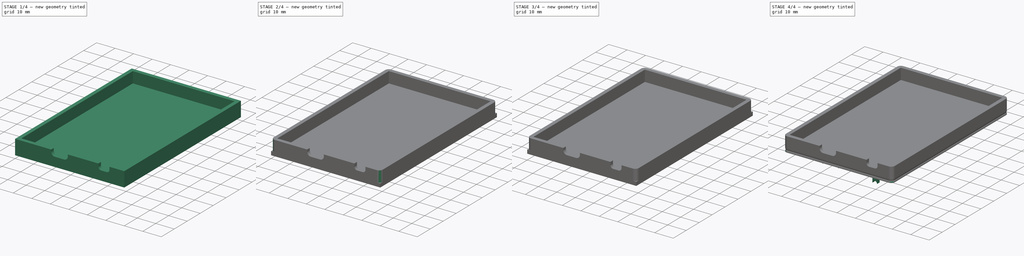
[diagram: build sequence overview — one tinted view per stage of 4, left to right]
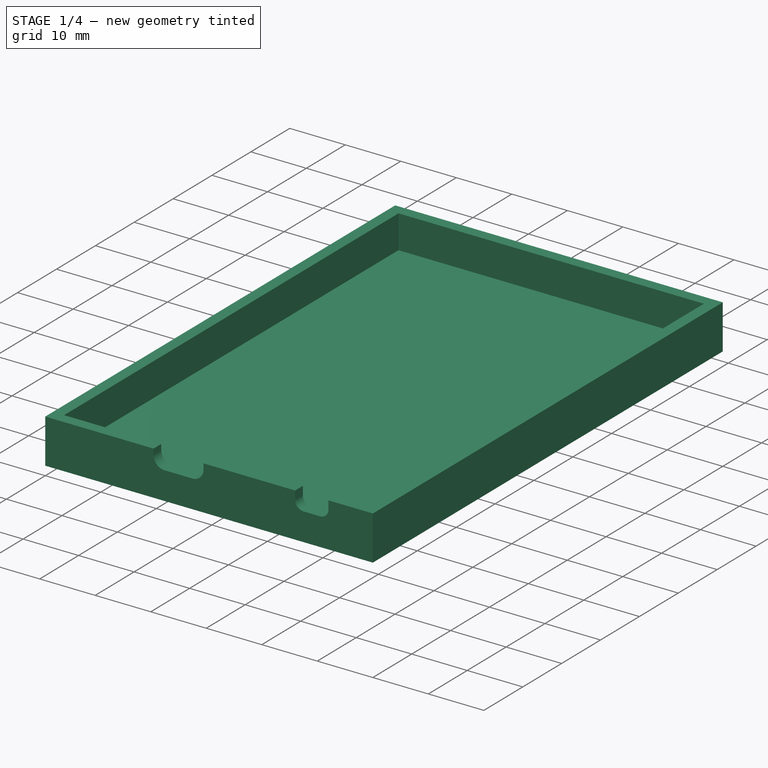
[diagram: stage 1 of 4 — iso view after this stage's code; geometry added in this stage tinted green]
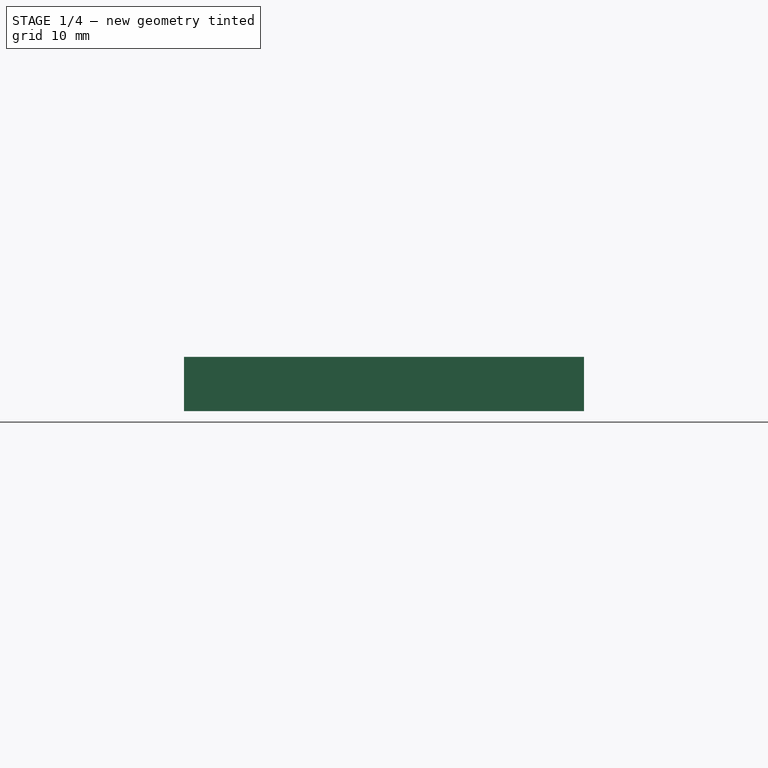
[diagram: stage 1 of 4 — front view after this stage's code; geometry added in this stage tinted green]
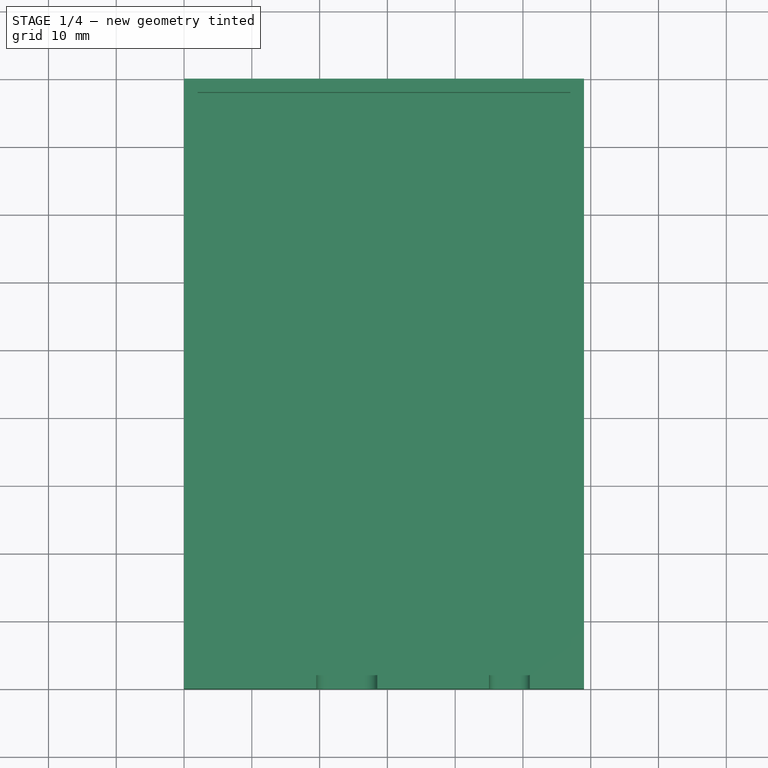
[diagram: stage 1 of 4 — top view after this stage's code; geometry added in this stage tinted green]
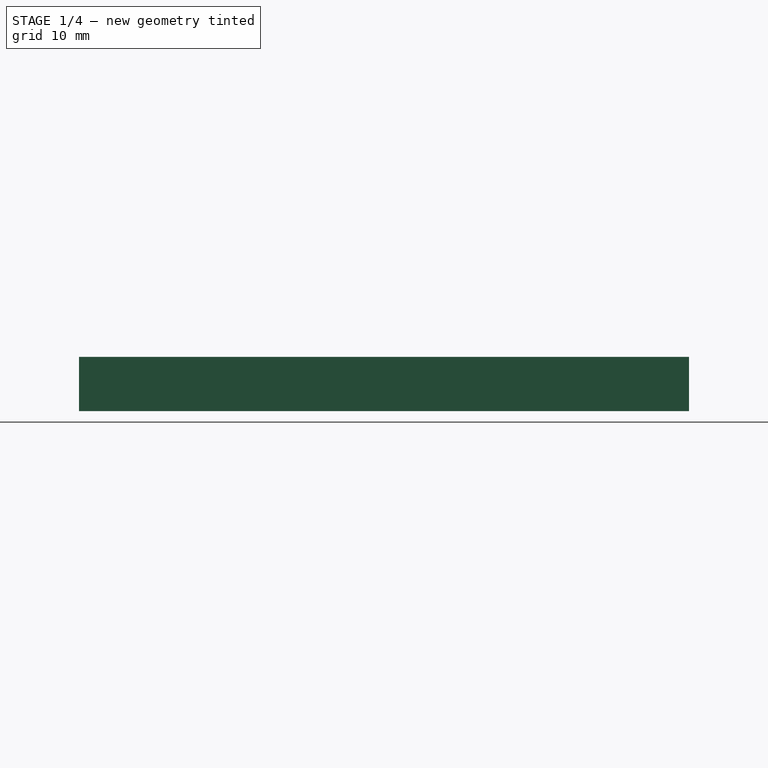
[diagram: stage 1 of 4 — right view after this stage's code; geometry added in this stage tinted green]
FCSTD DOCUMENT  (FreeCAD 0.21R33668 +26 (Git))
Label: ControllerEnclosure
License: All rights reserved
LicenseURL: http://en.wikipedia.org/wiki/All_rights_reserved
objects: Sketcher::SketchObject×6, PartDesign::Pocket×4, PartDesign::Fillet×3, PartDesign::AdditiveBox×2, PartDesign::Pad×2, PartDesign::Body×2, App::Part×2
note: 30 computed .brp shape members not serialized (recipe doc carries the construction recipe); baked Part::Feature solids carry a one-line shape summary decoded from their .brp

FEATURE [PartDesign::AdditiveBox] Box
  AttacherType = Attacher::AttachEngine3D
  Height = 8
  Length = 59
  Width = 90
FEATURE [Sketcher::SketchObject] Sketch
  FullyConstrained = true
  MapMode = 5
  Placement = pos=(0,0,8) rot=(0,0,1;0rad)
  Support = -> [Box]
  sketch-geometry (4):
    g0: LineSegment StartX=2 StartY=88 StartZ=0 EndX=57 EndY=88 EndZ=0
    g1: LineSegment StartX=57 StartY=88 StartZ=0 EndX=57 EndY=2 EndZ=0
    g2: LineSegment StartX=57 StartY=2 StartZ=0 EndX=2 EndY=2 EndZ=0
    g3: LineSegment StartX=2 StartY=2 StartZ=0 EndX=2 EndY=88 EndZ=0
  constraints (12):
    c: Coincident(g0,g1)
    c: Coincident(g1,g2)
    c: Coincident(g2,g3)
    c: Coincident(g3,g0)
    c: Horizontal(g0)
    c: Horizontal(g2)
    c: Vertical(g1)
    c: Vertical(g3)
    c: DistanceX(g0,g0) = 55
    c: DistanceY(g1,g1) = 86
    c: DistanceY(g-1,g2) = 2
    c: DistanceX(g-1,g2) = 2
FEATURE [PartDesign::Pocket] Pocket
  BaseFeature = -> Box
  Direction = (0,0,-1)
  Length = 6
  Length2 = 5
  Profile = -> Sketch
  ReferenceAxis = -> Sketch [N_Axis]
  Type = 0
FEATURE [Sketcher::SketchObject] Sketch001
  ExternalGeometry = -> [Pocket]
  FullyConstrained = true
  MapMode = 5
  Placement = pos=(0,0,0) rot=(1,0,0;1.5708rad)
  Support = -> [Pocket]
  sketch-geometry (14):
    g0: LineSegment StartX=28.5 StartY=8 StartZ=0 EndX=28.5 EndY=7 EndZ=0
    g1: ArcOfCircle CenterX=26.5 CenterY=7 CenterZ=0 NormalX=0 NormalY=0 NormalZ=1 AngleXU=0 Radius=2 StartAngle=4.71239 EndAngle=6.28319
    g2: LineSegment StartX=26.5 StartY=5 StartZ=0 EndX=21.5 EndY=5 EndZ=0
    g3: ArcOfCircle CenterX=21.5 CenterY=7 CenterZ=0 NormalX=0 NormalY=0 NormalZ=1 AngleXU=0 Radius=2 StartAngle=3.14159 EndAngle=4.71239
    g4: LineSegment StartX=19.5 StartY=7 StartZ=0 EndX=19.5 EndY=8 EndZ=0
    g5: GeomPoint X=28.5 Y=5 Z=0
    g6: ArcOfCircle CenterX=46.5 CenterY=6.5 CenterZ=0 NormalX=0 NormalY=0 NormalZ=1 AngleXU=0 Radius=1.5 StartAngle=3.14159 EndAngle=4.71239
    g7: LineSegment StartX=45 StartY=6.5 StartZ=0 EndX=45 EndY=8 EndZ=0
    g8: LineSegment StartX=51 StartY=6.5 StartZ=0 EndX=51 EndY=8 EndZ=0
    g9: LineSegment StartX=19.5 StartY=8 StartZ=0 EndX=28.5 EndY=8 EndZ=0
    g10: LineSegment StartX=45 StartY=8 StartZ=0 EndX=51 EndY=8 EndZ=0
    g11: GeomPoint X=48 Y=8 Z=0
    g12: ArcOfCircle CenterX=49.5 CenterY=6.5 CenterZ=0 NormalX=0 NormalY=0 NormalZ=1 AngleXU=0 Radius=1.5 StartAngle=4.71239 EndAngle=6.28319
    g13: LineSegment StartX=46.5 StartY=5 StartZ=0 EndX=49.5 EndY=5 EndZ=0
  constraints (39):
    c: Tangent(g0,g1) = 1.5708
    c: Tangent(g1,g2) = 1.5708
    c: Tangent(g2,g3) = 1.5708
    c: Tangent(g3,g4) = 1.5708
    c: Horizontal(g2)
    c: Vertical(g0)
    c: Vertical(g4)
    c: Equal(g1,g3)
    c: PointOnObject(g5,g0)
    c: PointOnObject(g5,g2)
    c: PointOnObject(g0,g-3)
    c: PointOnObject(g4,g-3)
    c: DistanceX(g4,g0) = 9
    c: Radius(g1) = 2
    c: DistanceY(g2,g4) = 3
    c: DistanceX(g-1,g4) = 19.5
    c: Radius(g6) = 1.5
    c: Horizontal(g6,g6)
    c: Coincident(g7,g6)
    c: PointOnObject(g7,g-3)
    c: Vertical(g7)
    c: PointOnObject(g8,g-3)
    c: Vertical(g8)
    c: Coincident(g9,g4)
    c: Coincident(g9,g0)
    c: Coincident(g10,g7)
    c: Coincident(g10,g8)
    c: Horizontal(g6,g8)
    c: DistanceX(g-1,g11) = 48
    c: Symmetric(g7,g8,g11)
    c: Vertical(g6,g6)
    c: Coincident(g12,g8)
    c: Horizontal(g8,g12)
    c: Vertical(g12,g12)
    c: Equal(g6,g12)
    c: Coincident(g13,g6)
    c: Coincident(g13,g12)
    c: DistanceX(g7,g8) = 6
    c: Horizontal(g1,g6)
FEATURE [PartDesign::Pocket] Pocket001
  BaseFeature = -> Pocket
  Direction = (0,1,-2e-16)
  Length = 2
  Length2 = 5
  Profile = -> Sketch001
  ReferenceAxis = -> Sketch001 [N_Axis]
  Type = 0
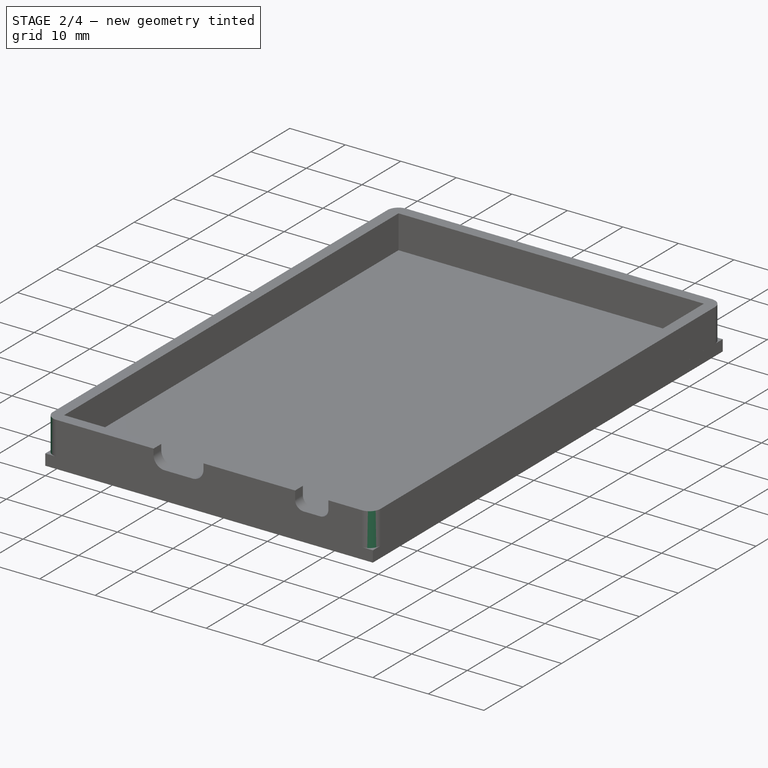
[diagram: stage 2 of 4 — iso view after this stage's code; geometry added in this stage tinted green]
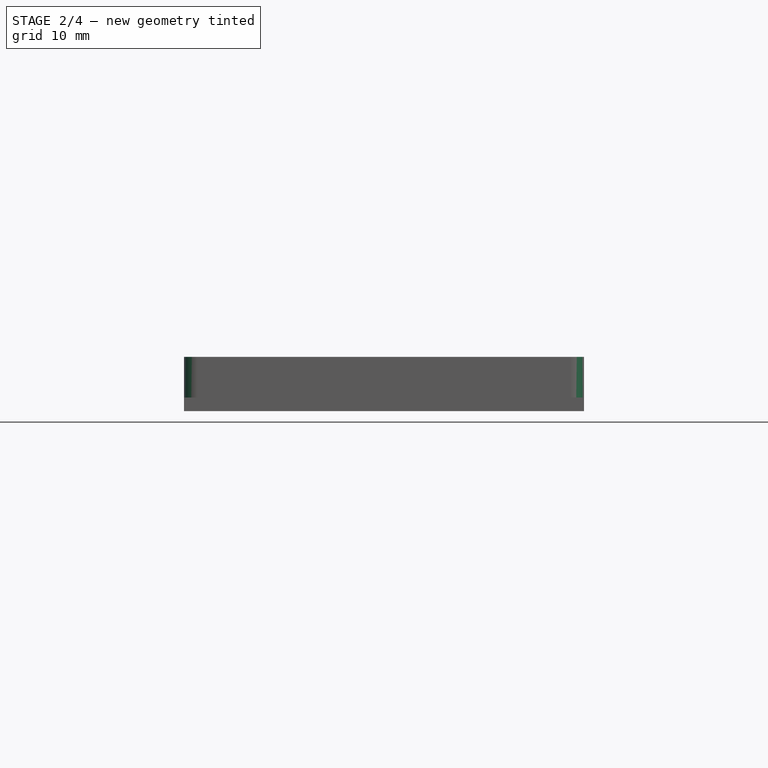
[diagram: stage 2 of 4 — front view after this stage's code; geometry added in this stage tinted green]
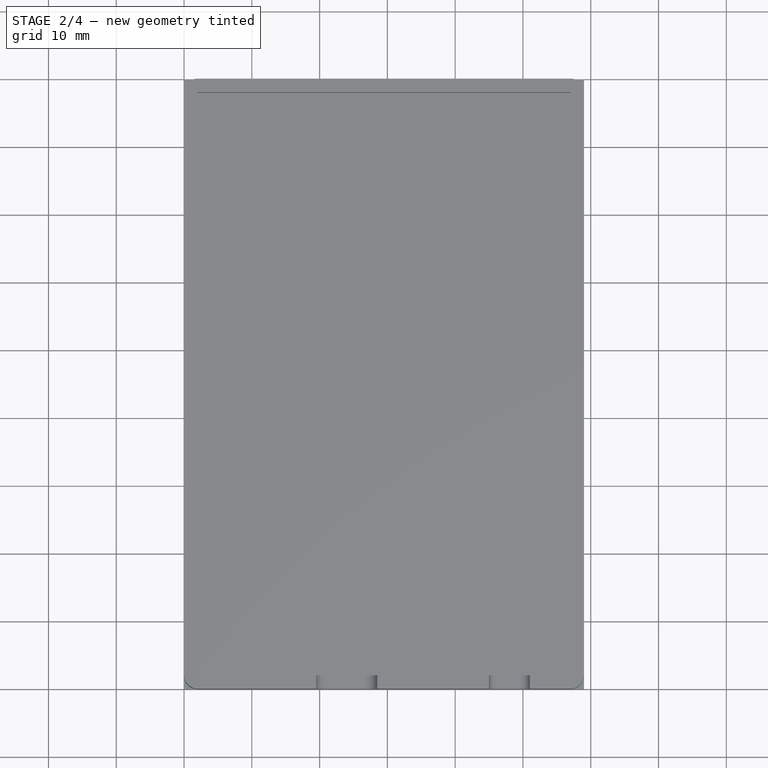
[diagram: stage 2 of 4 — top view after this stage's code; geometry added in this stage tinted green]
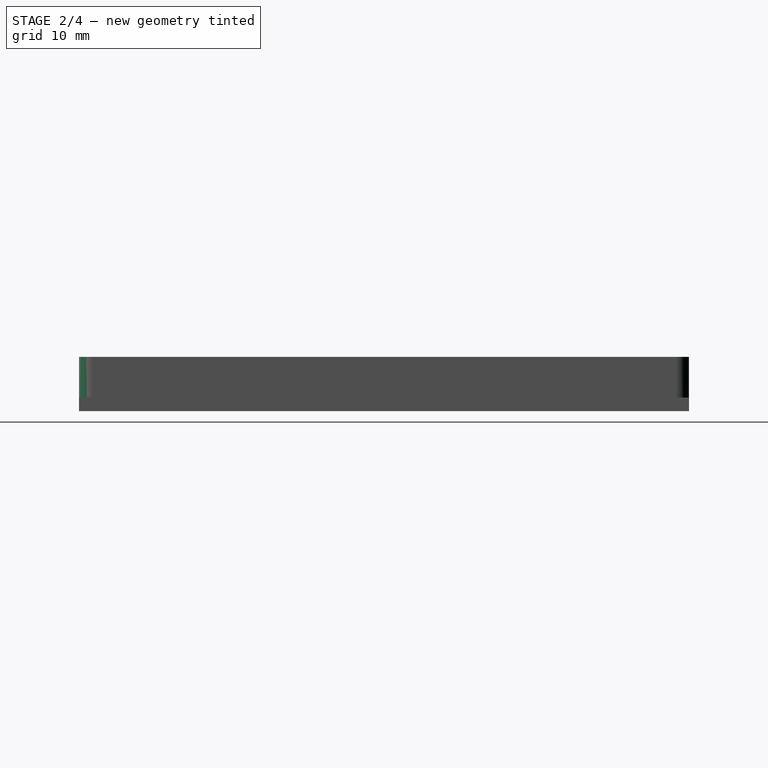
[diagram: stage 2 of 4 — right view after this stage's code; geometry added in this stage tinted green]
FEATURE [PartDesign::AdditiveBox] Box001
  AttacherType = Attacher::AttachEngine3D
  Height = 2
  Length = 59
  MapMode = 2
  Support = -> [Box]
  Width = 90
FEATURE [PartDesign::Body] Body001  label="Top"
  Group = -> [Box001,Sketch002,Sketch003,Pad,Sketch005,Pocket002,Fillet001,Sketch004,Pad001,Pocket003]
  Origin = -> Origin003
  Tip = -> Pocket003
FEATURE [App::Part] Part001  label="TopPart"
  Group = -> [Body001]
  Origin = -> Origin002
FEATURE [PartDesign::Fillet] Fillet
  Base = -> Pocket001 [Edge30,Edge3,Edge1,Edge5]
  BaseFeature = -> Pocket001
  Radius = 2
  SupportTransform = false
  UseAllEdges = false
FEATURE [PartDesign::Fillet] Fillet002
  Base = -> Fillet [Edge24]
  BaseFeature = -> Fillet
  Radius = 2
  SupportTransform = false
  UseAllEdges = false
FEATURE [PartDesign::Body] Body  label="Bottom"
  Group = -> [Box,Sketch,Pocket,Sketch001,Pocket001,Fillet,Fillet002]
  Origin = -> Origin
  Tip = -> Fillet002
FEATURE [App::Part] Part  label="BottomPart"
  Group = -> [Body]
  Origin = -> Origin001
  Placement = pos=(0,0,-8) rot=(0,0,1;0rad)
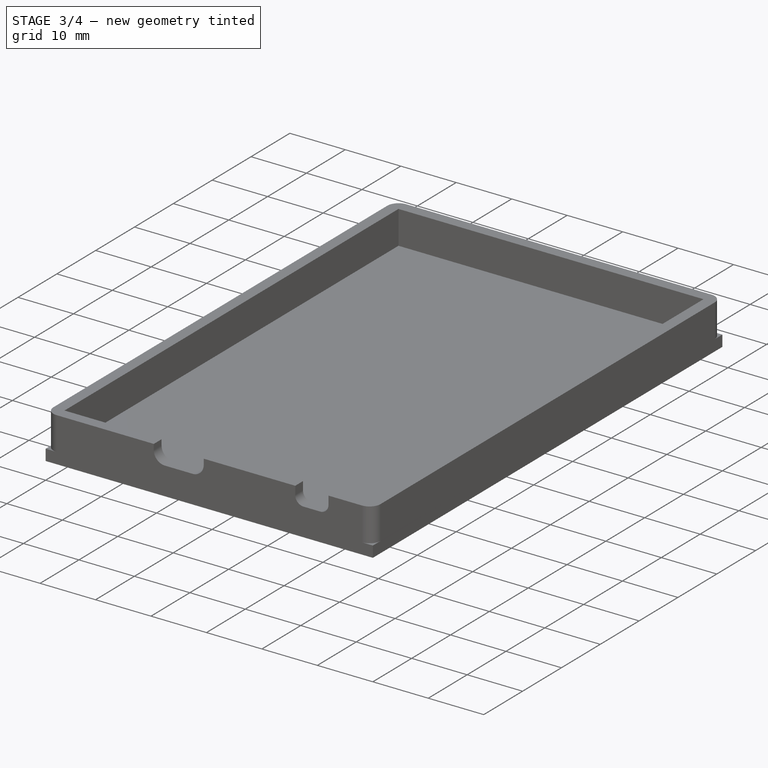
[diagram: stage 3 of 4 — iso view after this stage's code; geometry added in this stage tinted green]
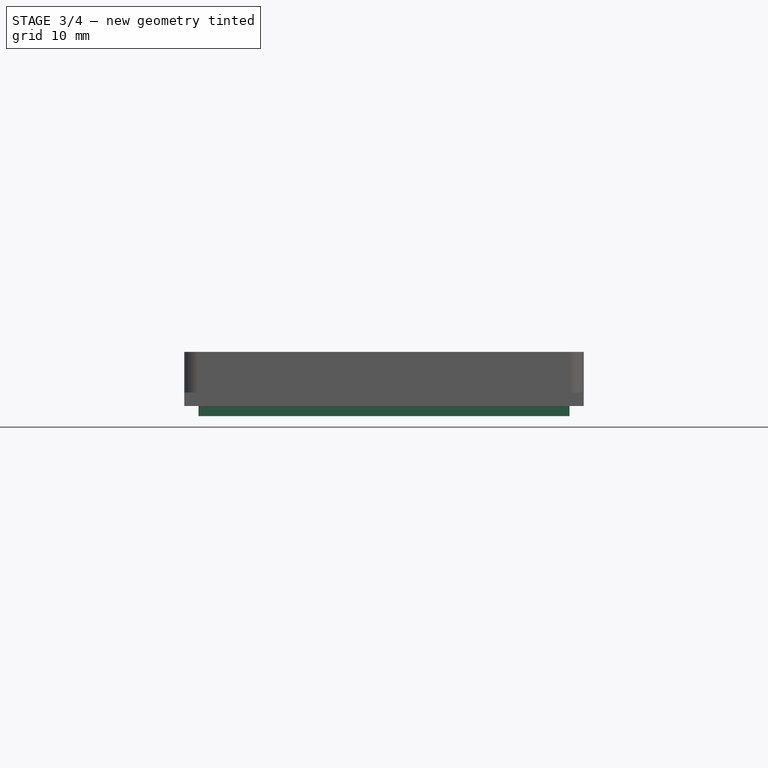
[diagram: stage 3 of 4 — front view after this stage's code; geometry added in this stage tinted green]
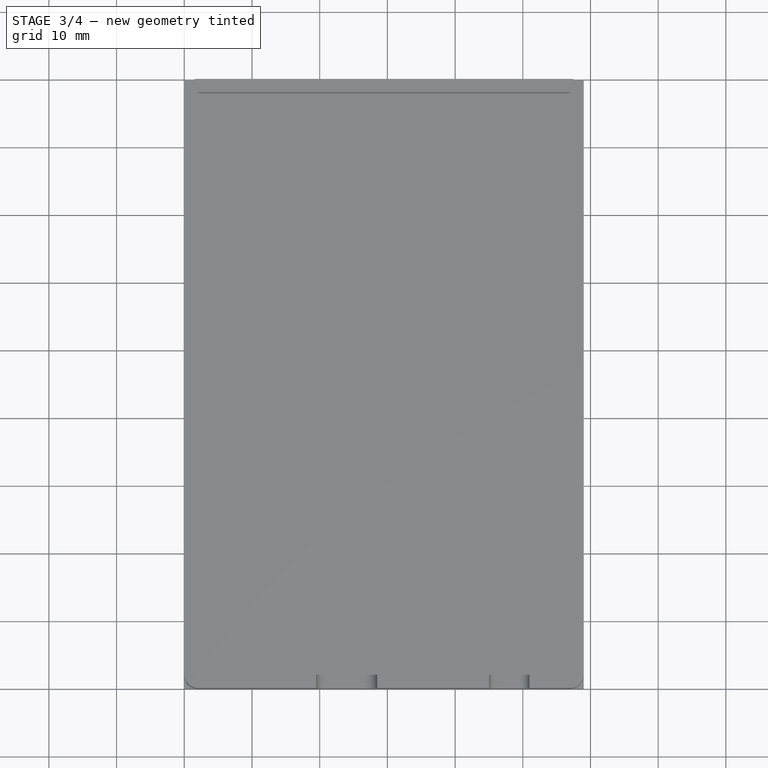
[diagram: stage 3 of 4 — top view after this stage's code; geometry added in this stage tinted green]
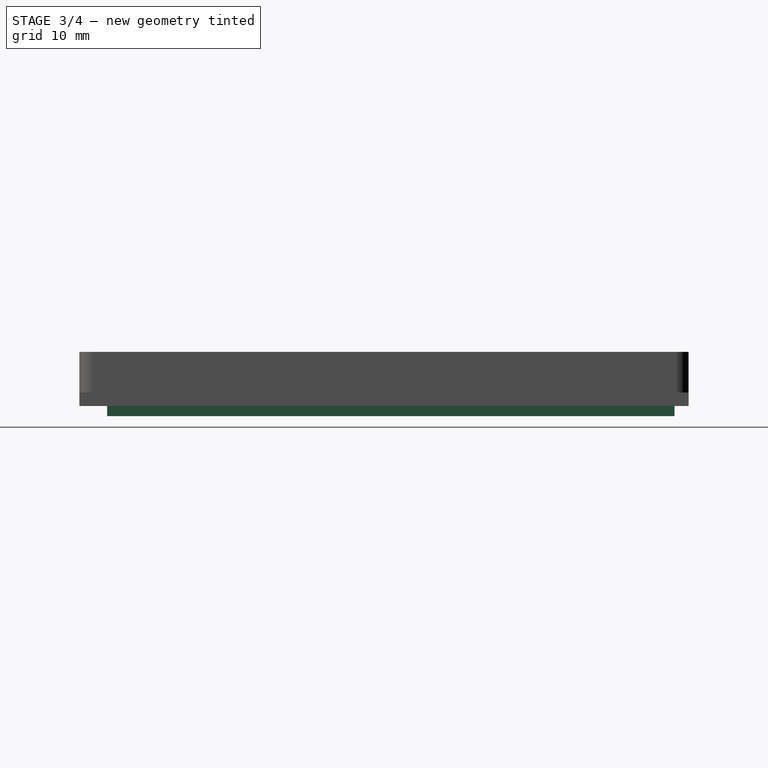
[diagram: stage 3 of 4 — right view after this stage's code; geometry added in this stage tinted green]
FEATURE [Sketcher::SketchObject] Sketch002
  ExternalGeometry = -> [Box001]
  FullyConstrained = true
  MapMode = 5
  Placement = pos=(0,0,0) rot=(1,0,0;3.14159rad)
  Support = -> [Box001]
  sketch-geometry (12):
    g0: LineSegment StartX=4 StartY=-4.5 StartZ=0 EndX=11.5 EndY=-4.5 EndZ=0
    g1: LineSegment StartX=11.5 StartY=-4.5 StartZ=0 EndX=11.5 EndY=-12.5 EndZ=0
    g2: LineSegment StartX=11.5 StartY=-12.5 StartZ=0 EndX=4 EndY=-12.5 EndZ=0
    g3: LineSegment StartX=4 StartY=-12.5 StartZ=0 EndX=4 EndY=-4.5 EndZ=0
    g4: LineSegment StartX=4 StartY=-67 StartZ=0 EndX=11.5 EndY=-67 EndZ=0
    g5: LineSegment StartX=11.5 StartY=-67 StartZ=0 EndX=11.5 EndY=-75 EndZ=0
    g6: LineSegment StartX=11.5 StartY=-75 StartZ=0 EndX=4 EndY=-75 EndZ=0
    g7: LineSegment StartX=4 StartY=-75 StartZ=0 EndX=4 EndY=-67 EndZ=0
    g8: LineSegment StartX=4 StartY=-79.5 StartZ=0 EndX=11.5 EndY=-79.5 EndZ=0
    g9: LineSegment StartX=11.5 StartY=-79.5 StartZ=0 EndX=11.5 EndY=-87.5 EndZ=0
    g10: LineSegment StartX=11.5 StartY=-87.5 StartZ=0 EndX=4 EndY=-87.5 EndZ=0
    g11: LineSegment StartX=4 StartY=-87.5 StartZ=0 EndX=4 EndY=-79.5 EndZ=0
  constraints (36):
    c: Coincident(g0,g1)
    c: Coincident(g1,g2)
    c: Coincident(g2,g3)
    c: Coincident(g3,g0)
    c: Horizontal(g0)
    c: Horizontal(g2)
    c: Vertical(g1)
    c: Vertical(g3)
    c: DistanceY(g1,g1) = 8
    c: DistanceX(g0,g0) = 7.5
    c: DistanceY(g0,g-1) = 4.5
    c: DistanceX(g-1,g0) = 4
    c: Coincident(g4,g5)
    c: Coincident(g5,g6)
    c: Coincident(g6,g7)
    c: Coincident(g7,g4)
    c: Horizontal(g4)
    c: Horizontal(g6)
    c: Vertical(g5)
    c: Vertical(g7)
    c: Coincident(g8,g9)
    c: Coincident(g9,g10)
    c: Coincident(g10,g11)
    c: Coincident(g11,g8)
    c: Horizontal(g8)
    c: Horizontal(g10)
    c: Vertical(g9)
    c: Vertical(g11)
    c: Vertical(g8,g6)
    c: Vertical(g5,g8)
    c: Vertical(g4,g1)
    c: Vertical(g2,g4)
    c: Equal(g7,g11)
    c: Equal(g7,g3)
    c: DistanceY(g-3,g6) = 15
    c: DistanceY(g-3,g10) = 2.5
FEATURE [Sketcher::SketchObject] Sketch003
  ExternalGeometry = -> [Box001,Sketch002]
  FullyConstrained = true
  MapMode = 5
  Placement = pos=(0,0,0) rot=(1,0,0;3.14159rad)
  Support = -> [Box001]
  sketch-geometry (13):
    g0: LineSegment StartX=56.9 StartY=-87.9 StartZ=0 EndX=2.1 EndY=-87.9 EndZ=0
    g1: LineSegment StartX=2.1 StartY=-87.9 StartZ=0 EndX=2.1 EndY=-4.1 EndZ=0
    g2: LineSegment StartX=2.1 StartY=-4.1 StartZ=0 EndX=56.9 EndY=-4.1 EndZ=0
    g3: LineSegment StartX=56.9 StartY=-4.1 StartZ=0 EndX=56.9 EndY=-87.9 EndZ=0
    g4: LineSegment StartX=4 StartY=-4.5 StartZ=0 EndX=55 EndY=-4.5 EndZ=0
    g5: LineSegment StartX=55 StartY=-4.5 StartZ=0 EndX=55 EndY=-87.5 EndZ=0
    g6: LineSegment StartX=55 StartY=-87.5 StartZ=0 EndX=4 EndY=-87.5 EndZ=0
    g7: LineSegment StartX=4 StartY=-87.5 StartZ=0 EndX=4 EndY=-4.5 EndZ=0
    g8: LineSegment StartX=2.1 StartY=-4.1 StartZ=0 EndX=4 EndY=-4.5 EndZ=0
    g9: LineSegment StartX=55 StartY=-4.5 StartZ=0 EndX=56.9 EndY=-4.1 EndZ=0
    g10: LineSegment StartX=55 StartY=-87.5 StartZ=0 EndX=56.9 EndY=-87.9 EndZ=0
    g11: LineSegment StartX=0 StartY=0 StartZ=0 EndX=2.1 EndY=-4.1 EndZ=0
    g12: LineSegment StartX=59 StartY=0 StartZ=0 EndX=56.9 EndY=-4.1 EndZ=0
  constraints (32):
    c: Coincident(g0,g1)
    c: Coincident(g1,g2)
    c: Coincident(g2,g3)
    c: Coincident(g3,g0)
    c: Horizontal(g0)
    c: Horizontal(g2)
    c: Vertical(g1)
    c: Vertical(g3)
    c: DistanceY(g-3,g0) = 2.1
    c: DistanceX(g-4,g1) = 2.1
    c: Coincident(g4,g5)
    c: Coincident(g5,g6)
    c: Coincident(g6,g7)
    c: Coincident(g7,g4)
    c: Horizontal(g4)
    c: Horizontal(g6)
    c: Vertical(g5)
    c: Coincident(g4,g-5)
    c: Coincident(g6,g-6)
    c: Coincident(g8,g1)
    c: Coincident(g8,g4)
    c: Coincident(g9,g4)
    c: Coincident(g9,g2)
    c: Coincident(g10,g5)
    c: Coincident(g10,g0)
    c: Equal(g10,g9)
    c: Equal(g8,g9)
    c: Coincident(g11,g-4)
    c: Coincident(g11,g1)
    c: Coincident(g12,g-3)
    c: Coincident(g12,g2)
    c: Equal(g11,g12)
FEATURE [PartDesign::Pad] Pad
  BaseFeature = -> Box001
  Direction = (0,0,-1)
  Length = 1.5
  Length2 = 10
  Profile = -> Sketch003
  ReferenceAxis = -> Sketch003 [N_Axis]
  Type = 0
FEATURE [PartDesign::Pocket] Pocket002
  BaseFeature = -> Pad
  Direction = (0,0,1)
  Length = 2
  Length2 = 5
  Profile = -> Sketch002
  ReferenceAxis = -> Sketch002 [N_Axis]
  Type = 0
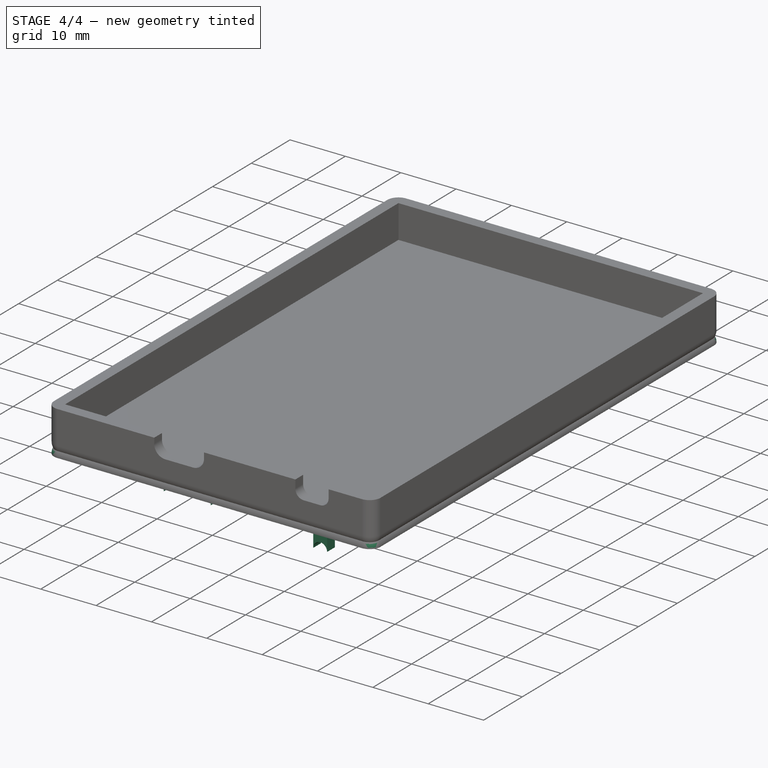
[diagram: stage 4 of 4 — iso view after this stage's code; geometry added in this stage tinted green]
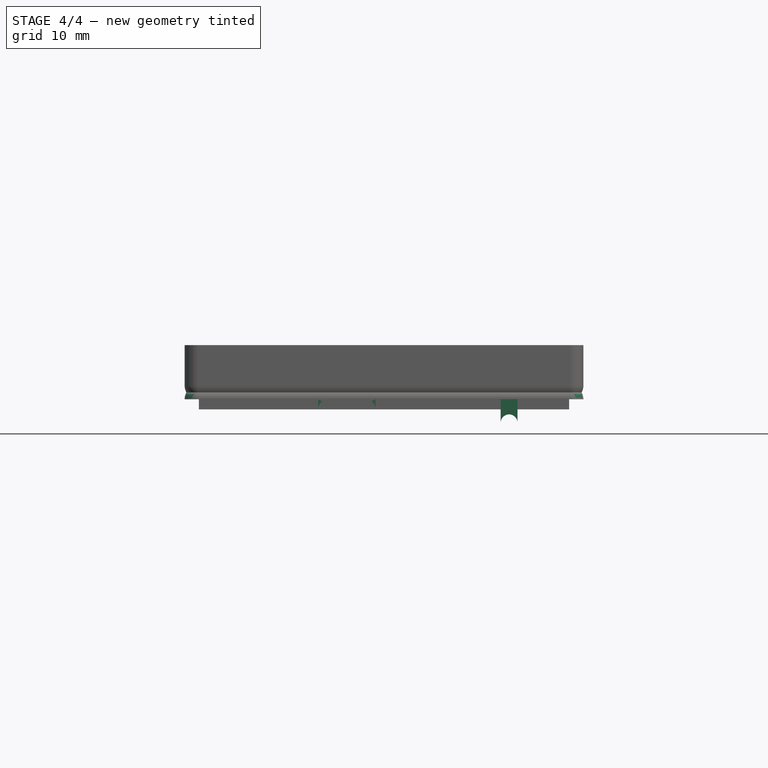
[diagram: stage 4 of 4 — front view after this stage's code; geometry added in this stage tinted green]
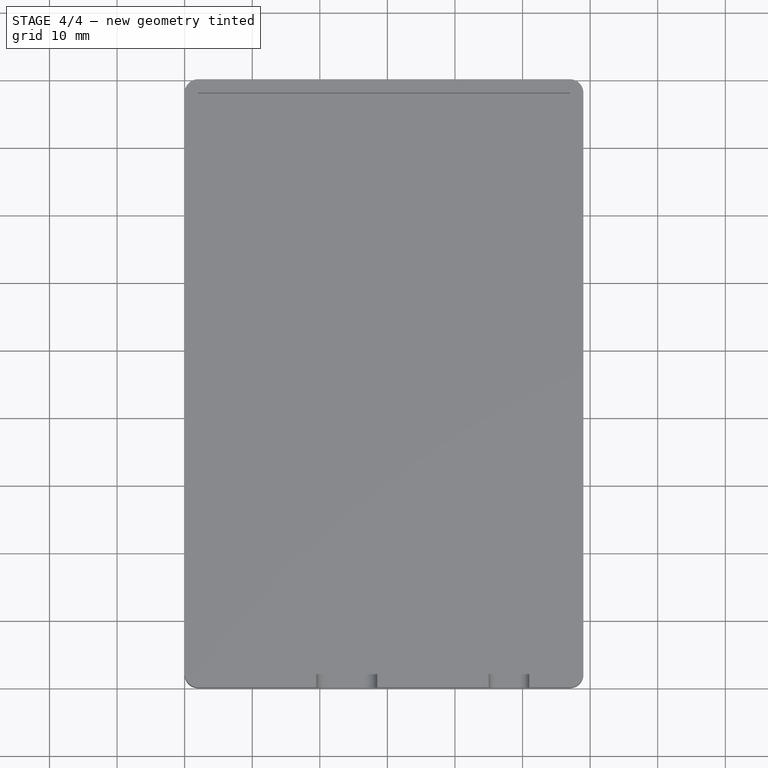
[diagram: stage 4 of 4 — top view after this stage's code; geometry added in this stage tinted green]
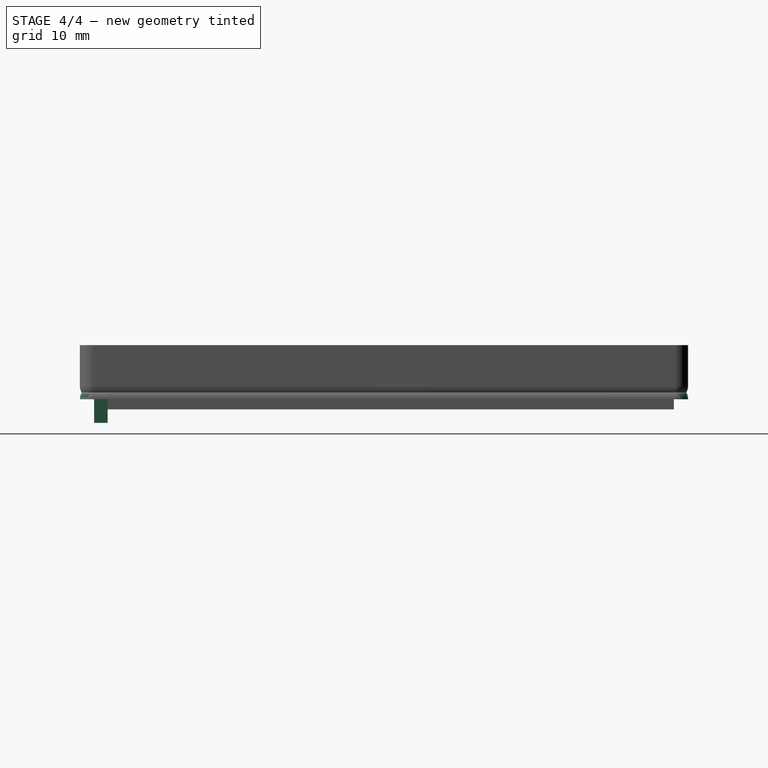
[diagram: stage 4 of 4 — right view after this stage's code; geometry added in this stage tinted green]
FEATURE [PartDesign::Fillet] Fillet001
  Base = -> Pocket002 [Edge2,Edge7,Edge9,Edge8,Edge6,Edge1,Edge23,Edge3]
  BaseFeature = -> Pocket002
  Radius = 1.99
  SupportTransform = false
  UseAllEdges = false
FEATURE [Sketcher::SketchObject] Sketch004
  ExternalGeometry = -> [Fillet001]
  FullyConstrained = true
  MapMode = 5
  Placement = pos=(0,4.1,0) rot=(1,0,0;1.5708rad)
  Support = -> [Fillet001]
  sketch-geometry (10):
    g0: LineSegment StartX=19.75 StartY=-5e-16 StartZ=0 EndX=28.25 EndY=-5e-16 EndZ=0
    g1: LineSegment StartX=46.76 StartY=-5e-16 StartZ=0 EndX=49.26 EndY=-5e-16 EndZ=0
    g2: LineSegment StartX=19.75 StartY=-5e-16 StartZ=0 EndX=19.75 EndY=-1.5 EndZ=0
    g3: LineSegment StartX=28.25 StartY=-5e-16 StartZ=0 EndX=28.25 EndY=-1.5 EndZ=0
    g4: ArcOfCircle CenterX=21.24 CenterY=-1.5 CenterZ=0 NormalX=0 NormalY=0 NormalZ=1 AngleXU=0 Radius=1.49 StartAngle=1.5708 EndAngle=3.14159
    g5: ArcOfCircle CenterX=26.76 CenterY=-1.5 CenterZ=0 NormalX=0 NormalY=0 NormalZ=1 AngleXU=0 Radius=1.49 StartAngle=0 EndAngle=1.5708
    g6: LineSegment StartX=21.24 StartY=-0.01 StartZ=0 EndX=26.76 EndY=-0.01 EndZ=0
    g7: LineSegment StartX=46.76 StartY=-5e-16 StartZ=0 EndX=46.76 EndY=-3.5 EndZ=0
    g8: LineSegment StartX=49.26 StartY=-5e-16 StartZ=0 EndX=49.26 EndY=-3.5 EndZ=0
    g9: ArcOfCircle CenterX=48.01 CenterY=-3.5 CenterZ=0 NormalX=0 NormalY=0 NormalZ=1 AngleXU=0 Radius=1.25 StartAngle=0 EndAngle=3.14159
  constraints (33):
    c: PointOnObject(g0,g-3)
    c: PointOnObject(g0,g-3)
    c: PointOnObject(g1,g-3)
    c: PointOnObject(g1,g-3)
    c: DistanceX(g0,g0) = 8.5
    c: Coincident(g2,g0)
    c: Vertical(g2)
    c: Coincident(g3,g0)
    c: Vertical(g3)
    c: Horizontal(g2,g3)
    c: DistanceY(g2,g2) = 1.5
    c: Coincident(g4,g2)
    c: Coincident(g5,g3)
    c: Horizontal(g4,g5)
    c: Horizontal(g2,g4)
    c: Vertical(g4,g4)
    c: Vertical(g5,g5)
    c: Equal(g5,g4)
    c: Radius(g4) = 1.49
    c: Coincident(g6,g4)
    c: Coincident(g6,g5)
    c: DistanceX(g-1,g2) = 19.75
    c: DistanceX(g1,g1) = 2.5
    c: DistanceX(g1,g-3) = 7.75
    c: Coincident(g7,g1)
    c: Vertical(g7)
    c: Coincident(g8,g1)
    c: Vertical(g8)
    c: Horizontal(g7,g8)
    c: DistanceY(g7,g7) = 3.5
    c: Coincident(g9,g7)
    c: Coincident(g9,g8)
    c: Horizontal(g7,g9)
FEATURE [PartDesign::Pad] Pad001
  BaseFeature = -> Fillet001
  Direction = (0,-1,2e-16)
  Length = 2
  Length2 = 10
  Profile = -> Sketch004
  ReferenceAxis = -> Sketch004 [N_Axis]
  Type = 0
FEATURE [Sketcher::SketchObject] Sketch005
  FullyConstrained = true
  MapMode = 5
  Placement = pos=(0,4.1,0) rot=(1,0,0;1.5708rad)
  Support = -> [Pad]
  sketch-geometry (4):
    g0: ArcOfCircle CenterX=21.25 CenterY=-1.5 CenterZ=0 NormalX=0 NormalY=0 NormalZ=1 AngleXU=0 Radius=1.5 StartAngle=1.5708 EndAngle=3.14159
    g1: ArcOfCircle CenterX=26.75 CenterY=-1.5 CenterZ=0 NormalX=0 NormalY=0 NormalZ=1 AngleXU=0 Radius=1.5 StartAngle=0 EndAngle=1.5708
    g2: LineSegment StartX=21.25 StartY=0 StartZ=0 EndX=26.75 EndY=0 EndZ=0
    g3: LineSegment StartX=19.75 StartY=-1.5 StartZ=0 EndX=28.25 EndY=-1.5 EndZ=0
  constraints (14):
    c: Coincident(g2,g0)
    c: Coincident(g2,g1)
    c: Horizontal(g2)
    c: Coincident(g3,g0)
    c: Coincident(g3,g1)
    c: Horizontal(g3)
    c: Horizontal(g0,g1)
    c: Horizontal(g0,g0)
    c: DistanceX(g-1,g0) = 19.75
    c: Vertical(g0,g0)
    c: Vertical(g1,g1)
    c: DistanceX(g0,g1) = 8.5
    c: Radius(g0) = 1.5
    c: Horizontal(g0,g-1)
FEATURE [PartDesign::Pocket] Pocket003
  BaseFeature = -> Pad001
  Direction = (0,1,-2e-16)
  Length = 1
  Length2 = 5
  Profile = -> Sketch005
  ReferenceAxis = -> Sketch005 [N_Axis]
  Refine = true
  Type = 0
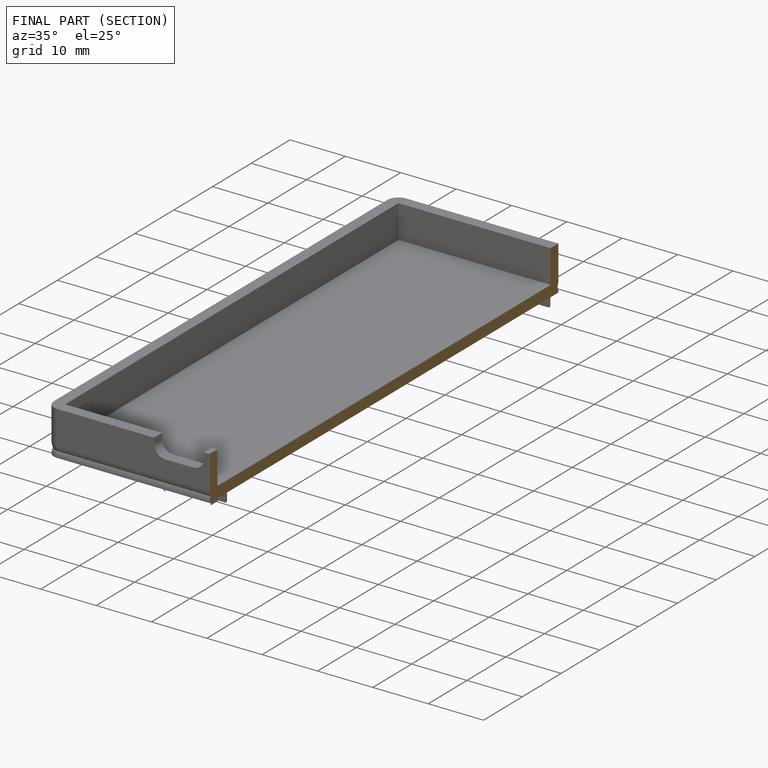
[diagram: finished part — half-section view (interior)]
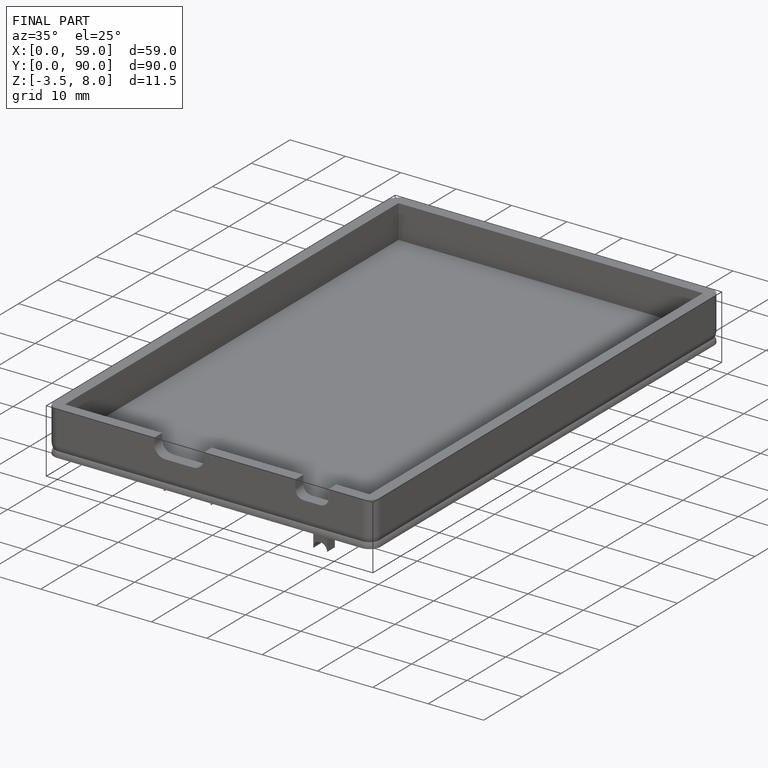
[diagram: finished part — iso view with bounding-box wireframe]
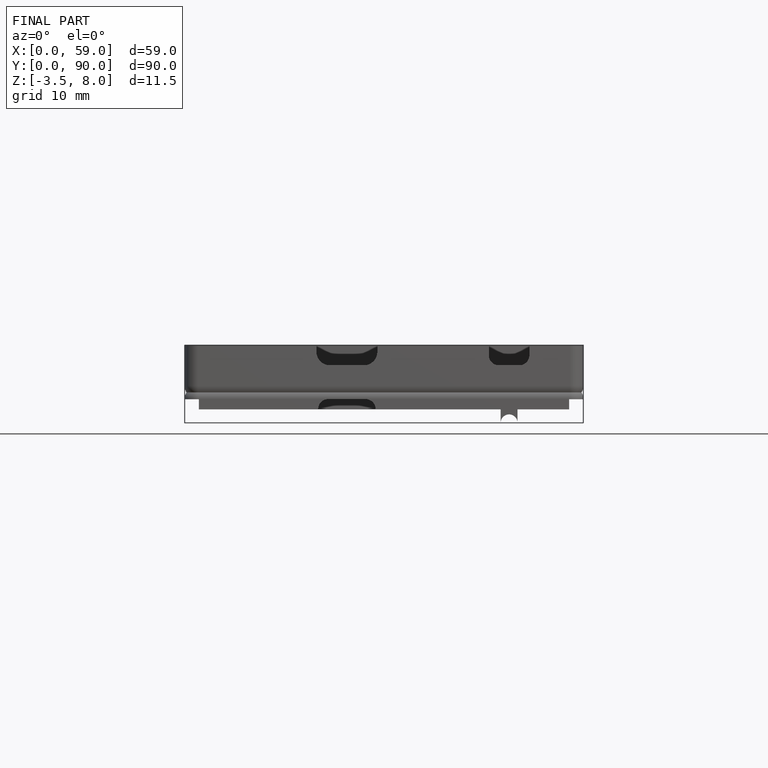
[diagram: finished part — front view with bounding-box wireframe]
